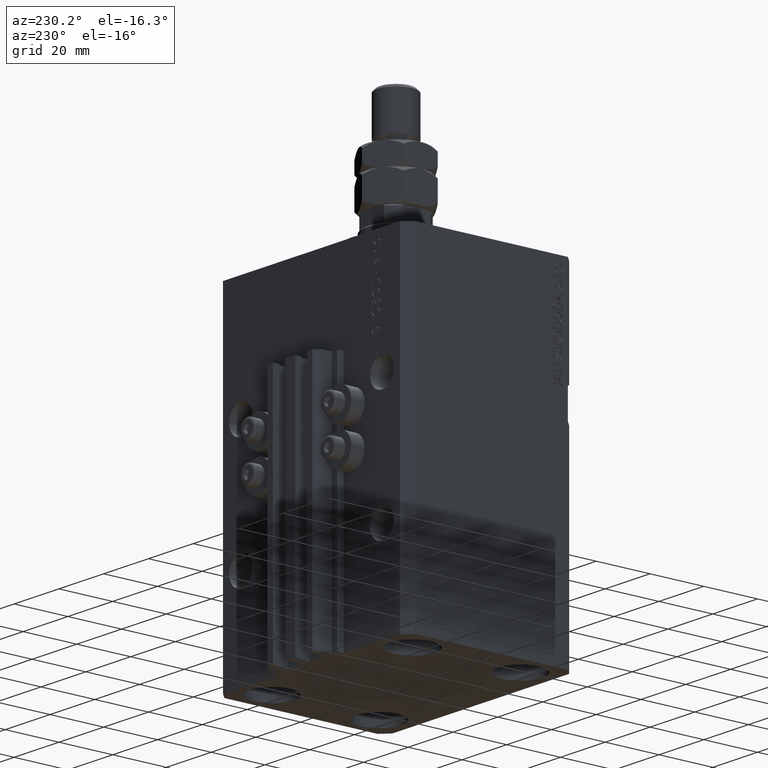
[diagram: clean part render]
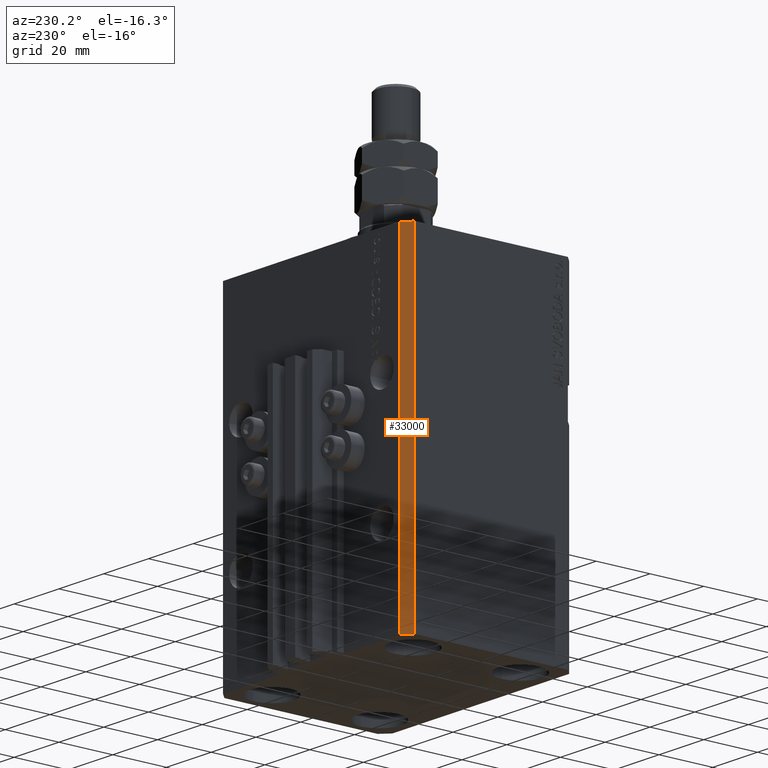
[diagram: same view with one face highlighted and labeled with its STEP entity id]
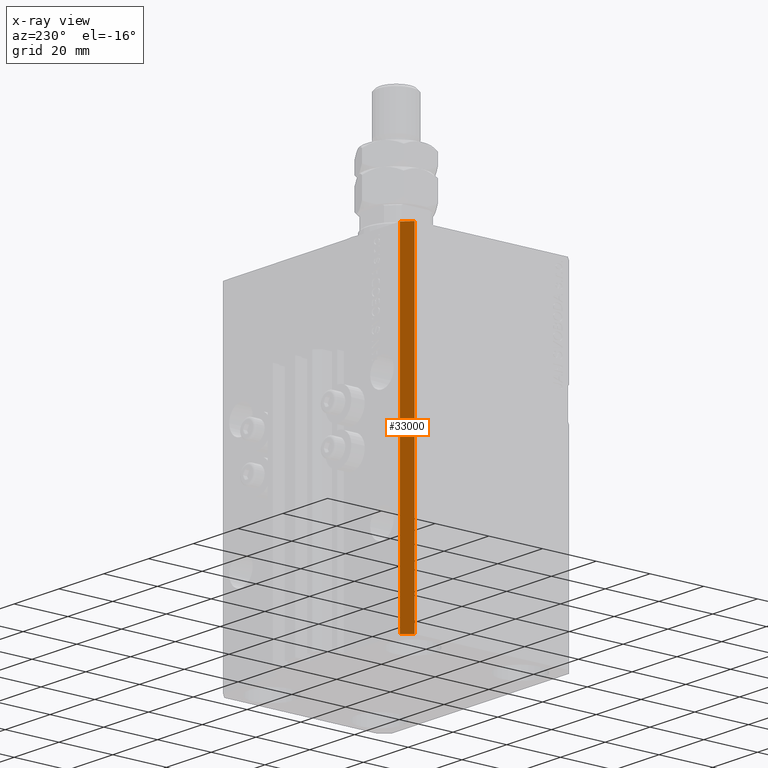
[diagram: x-ray of the same camera — body ghosted, the highlighted face saturated]
A machine part, auxiliary view. The second image highlights one B-rep face of the part: STEP entity #33000.
The next image is the same camera in x-ray: the body ghosted, the highlighted face saturated — about 0% of this face is hidden behind the body in this view.
In plain terms, the highlighted planar face has unit normal (-0.7071, 0.7071, 0).
Its self-contained STEP definition (entity closure, byte-faithful):
#657 = VECTOR ( 'NONE', #22438, 1000.000000000000000 ) ;
#1106 = DIRECTION ( 'NONE',  ( -0.7071067811865471286, -0.7071067811865479058, 0.000000000000000000 ) ) ;
#1817 = CARTESIAN_POINT ( 'NONE',  ( -39.50000000000000711, 31.50000000000000000, 0.000000000000000000 ) ) ;
#3556 = VERTEX_POINT ( 'NONE', #8849 ) ;
#5285 = PLANE ( 'NONE',  #17368 ) ;
#5366 = VERTEX_POINT ( 'NONE', #37514 ) ;
#5375 = LINE ( 'NONE', #21209, #35779 ) ;
#7643 = VERTEX_POINT ( 'NONE', #1817 ) ;
#8696 = CARTESIAN_POINT ( 'NONE',  ( -42.50000000000000000, 28.50000000000000000, -123.0000000000000000 ) ) ;
#8849 = CARTESIAN_POINT ( 'NONE',  ( -39.50000000000000711, 31.50000000000000000, -123.0000000000000000 ) ) ;
#9887 = ORIENTED_EDGE ( 'NONE', *, *, #35378, .F. ) ;
#12386 = VECTOR ( 'NONE', #40403, 1000.000000000000000 ) ;
#13059 = FACE_OUTER_BOUND ( 'NONE', #42256, .T. ) ;
#13494 = CARTESIAN_POINT ( 'NONE',  ( -39.50000000000000711, 31.50000000000000000, 0.000000000000000000 ) ) ;
#14422 = LINE ( 'NONE', #41329, #34449 ) ;
#16616 = CARTESIAN_POINT ( 'NONE',  ( -39.50000000000000711, 31.50000000000000000, -123.0000000000000000 ) ) ;
#17368 = AXIS2_PLACEMENT_3D ( 'NONE', #16616, #25139, #47279 ) ;
#19797 = VERTEX_POINT ( 'NONE', #8696 ) ;
#21209 = CARTESIAN_POINT ( 'NONE',  ( -39.50000000000000711, 31.50000000000000000, -123.0000000000000000 ) ) ;
#22438 = DIRECTION ( 'NONE',  ( 0.000000000000000000, 0.000000000000000000, 1.000000000000000000 ) ) ;
#25074 = EDGE_CURVE ( 'NONE', #7643, #5366, #44187, .T. ) ;
#25139 = DIRECTION ( 'NONE',  ( -0.7071067811865479058, 0.7071067811865472397, 0.000000000000000000 ) ) ;
#25742 = DIRECTION ( 'NONE',  ( 0.000000000000000000, 0.000000000000000000, 1.000000000000000000 ) ) ;
#27445 = EDGE_CURVE ( 'NONE', #3556, #19797, #5375, .T. ) ;
#29958 = LINE ( 'NONE', #41538, #657 ) ;
#33000 = ADVANCED_FACE ( 'NONE', ( #13059 ), #5285, .T. ) ;
#34449 = VECTOR ( 'NONE', #25742, 1000.000000000000000 ) ;
#34803 = ORIENTED_EDGE ( 'NONE', *, *, #25074, .F. ) ;
#35378 = EDGE_CURVE ( 'NONE', #3556, #7643, #29958, .T. ) ;
#35779 = VECTOR ( 'NONE', #1106, 1000.000000000000000 ) ;
#37514 = CARTESIAN_POINT ( 'NONE',  ( -42.50000000000000000, 28.50000000000000000, 0.000000000000000000 ) ) ;
#39378 = EDGE_CURVE ( 'NONE', #19797, #5366, #14422, .T. ) ;
#40081 = ORIENTED_EDGE ( 'NONE', *, *, #27445, .T. ) ;
#40403 = DIRECTION ( 'NONE',  ( -0.7071067811865471286, -0.7071067811865479058, 0.000000000000000000 ) ) ;
#41329 = CARTESIAN_POINT ( 'NONE',  ( -42.50000000000000000, 28.50000000000000000, -123.0000000000000000 ) ) ;
#41538 = CARTESIAN_POINT ( 'NONE',  ( -39.50000000000000711, 31.50000000000000000, -123.0000000000000000 ) ) ;
#42256 = EDGE_LOOP ( 'NONE', ( #34803, #9887, #40081, #45478 ) ) ;
#44187 = LINE ( 'NONE', #13494, #12386 ) ;
#45478 = ORIENTED_EDGE ( 'NONE', *, *, #39378, .T. ) ;
#47279 = DIRECTION ( 'NONE',  ( -0.7071067811865472397, -0.7071067811865479058, 0.000000000000000000 ) ) ;